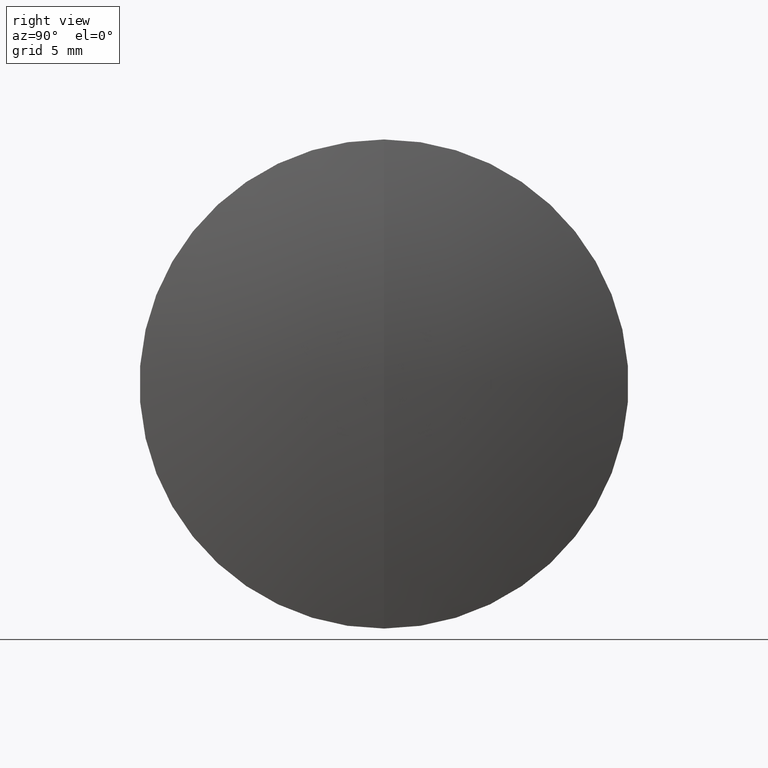
[diagram: clean part render]
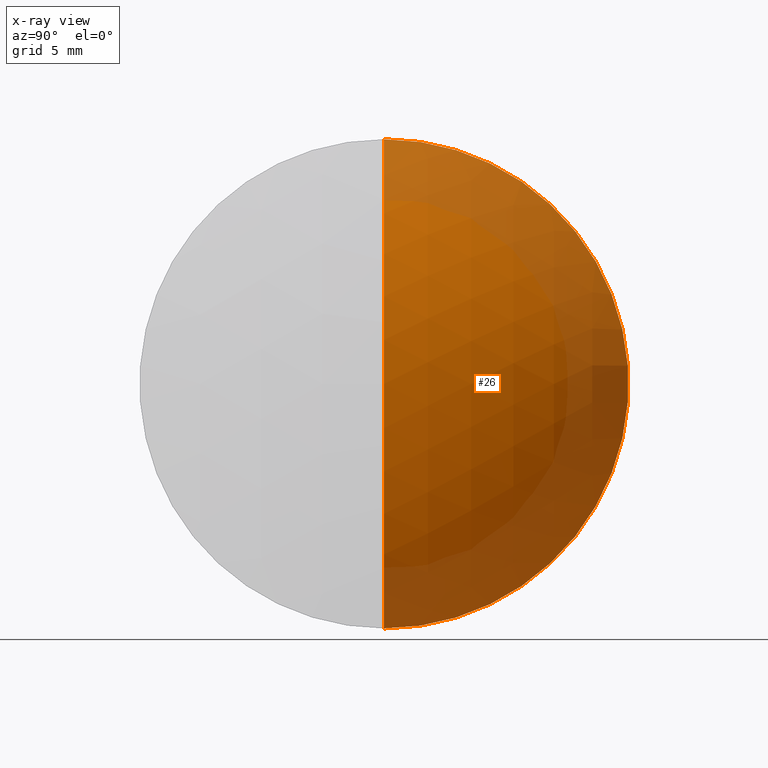
[diagram: x-ray — body ghosted, one internal face saturated and labeled with its STEP entity id]
A machine part, right view, then the same camera in x-ray: the body is ghosted and one INTERNAL B-rep face — a face not visible from any outside direction — is saturated and labeled: STEP entity #26.
In plain terms, the highlighted spherical surface has radius 20.1 mm.
Its self-contained STEP definition (entity closure, byte-faithful):
#4 = DIRECTION ( 'NONE',  ( -1.000000000000000000, -0.0000000000000000000, -0.0000000000000000000 ) ) ;
#7 = AXIS2_PLACEMENT_3D ( 'NONE', #159, #4, #297 ) ;
#25 = VERTEX_POINT ( 'NONE', #101 ) ;
#26 = ADVANCED_FACE ( 'NONE', ( #128 ), #342, .T. ) ;
#37 = DIRECTION ( 'NONE',  ( 0.0000000000000000000, 0.0000000000000000000, 1.000000000000000000 ) ) ;
#51 = CIRCLE ( 'NONE', #7, 12.69999999999999800 ) ;
#56 = DIRECTION ( 'NONE',  ( 0.0000000000000000000, 0.0000000000000000000, -1.000000000000000000 ) ) ;
#60 = ORIENTED_EDGE ( 'NONE', *, *, #180, .F. ) ;
#61 = DIRECTION ( 'NONE',  ( -0.0000000000000000000, 1.000000000000000000, 1.224646799147353200E-016 ) ) ;
#67 = CARTESIAN_POINT ( 'NONE',  ( 231.1958458084194200, 0.0000000000000000000, -1.955184743761382200E-015 ) ) ;
#71 = ORIENTED_EDGE ( 'NONE', *, *, #344, .F. ) ;
#101 = CARTESIAN_POINT ( 'NONE',  ( 226.6753194837398000, 0.0000000000000000000, 12.69999999999999800 ) ) ;
#125 = CIRCLE ( 'NONE', #134, 20.10000000000000900 ) ;
#128 = FACE_OUTER_BOUND ( 'NONE', #312, .T. ) ;
#129 = CIRCLE ( 'NONE', #201, 20.10000000000000900 ) ;
#134 = AXIS2_PLACEMENT_3D ( 'NONE', #181, #334, #56 ) ;
#138 = VERTEX_POINT ( 'NONE', #67 ) ;
#158 = CARTESIAN_POINT ( 'NONE',  ( 226.6753194837398000, 1.555301434917138400E-015, -12.69999999999999900 ) ) ;
#159 = CARTESIAN_POINT ( 'NONE',  ( 226.6753194837398000, 0.0000000000000000000, 0.0000000000000000000 ) ) ;
#161 = CARTESIAN_POINT ( 'NONE',  ( 211.0958458084194300, 0.0000000000000000000, -3.185954776904472300E-015 ) ) ;
#180 = EDGE_CURVE ( 'NONE', #138, #25, #125, .T. ) ;
#181 = CARTESIAN_POINT ( 'NONE',  ( 211.0958458084194300, 0.0000000000000000000, -3.185954776904472300E-015 ) ) ;
#201 = AXIS2_PLACEMENT_3D ( 'NONE', #161, #61, #269 ) ;
#204 = DIRECTION ( 'NONE',  ( 0.0000000000000000000, 1.000000000000000000, 0.0000000000000000000 ) ) ;
#238 = AXIS2_PLACEMENT_3D ( 'NONE', #327, #204, #37 ) ;
#269 = DIRECTION ( 'NONE',  ( 0.0000000000000000000, -1.224646799147353000E-016, 1.000000000000000000 ) ) ;
#297 = DIRECTION ( 'NONE',  ( 0.0000000000000000000, 0.0000000000000000000, 1.000000000000000000 ) ) ;
#300 = ORIENTED_EDGE ( 'NONE', *, *, #311, .T. ) ;
#311 = EDGE_CURVE ( 'NONE', #138, #346, #129, .T. ) ;
#312 = EDGE_LOOP ( 'NONE', ( #60, #300, #71 ) ) ;
#327 = CARTESIAN_POINT ( 'NONE',  ( 211.0958458084194300, 0.0000000000000000000, -3.185954776904472300E-015 ) ) ;
#334 = DIRECTION ( 'NONE',  ( 0.0000000000000000000, -1.000000000000000000, 0.0000000000000000000 ) ) ;
#342 = SPHERICAL_SURFACE ( 'NONE', #238, 20.10000000000000900 ) ;
#344 = EDGE_CURVE ( 'NONE', #25, #346, #51, .T. ) ;
#346 = VERTEX_POINT ( 'NONE', #158 ) ;